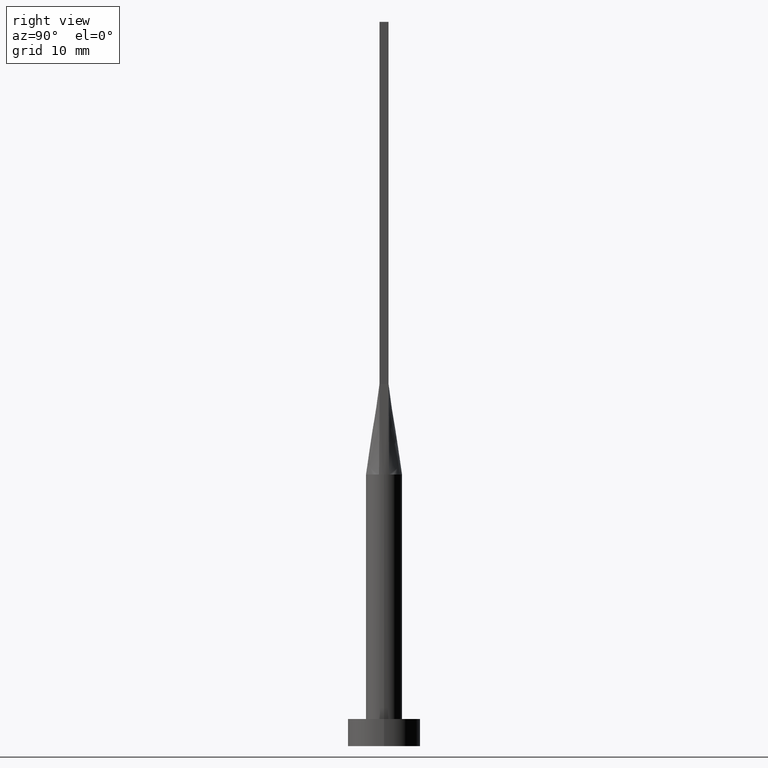
[diagram: clean part render]
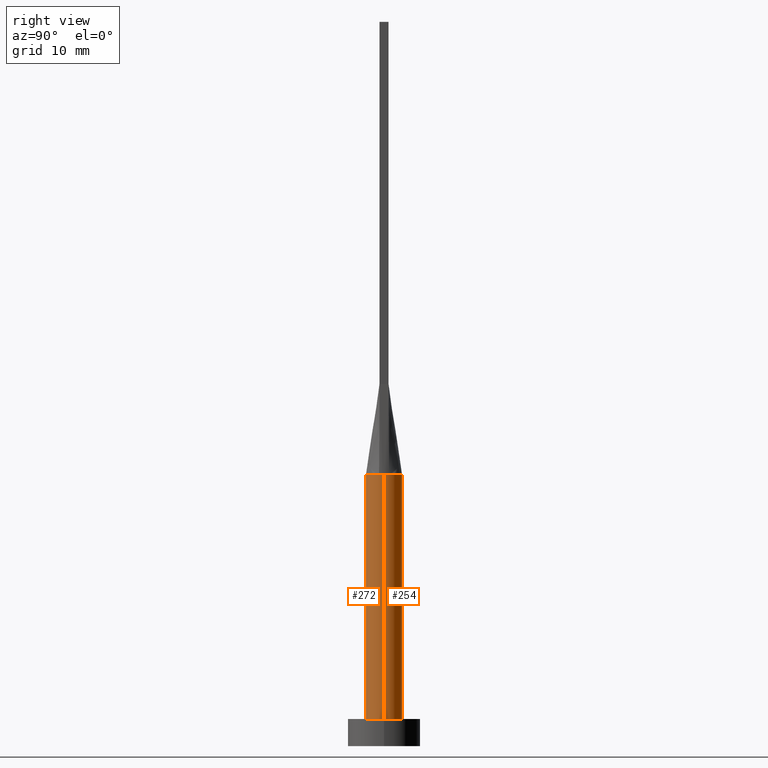
[diagram: same view with one multi-face feature highlighted, each face labeled with its STEP entity id]
A machine part, right view. The highlighted faces form ONE feature: a constant-radius fillet chain: 2 tangent blend faces with common blend radius 2 mm. The faces share edges in the B-rep.
Their STEP definitions:
[1] entity #254 (Cylinder):
#20 = AXIS2_PLACEMENT_3D ( 'NONE', #42, #34, #173 ) ;
#21 = ORIENTED_EDGE ( 'NONE', *, *, #78, .T. ) ;
#22 = EDGE_CURVE ( 'NONE', #23, #450, #408, .T. ) ;
#23 = VERTEX_POINT ( 'NONE', #439 ) ;
#29 = CARTESIAN_POINT ( 'NONE',  ( -1.155438169178558017, 1.647245198242353936, 30.00000000000000711 ) ) ;
#33 = CARTESIAN_POINT ( 'NONE',  ( -1.812374357931688884, 0.8669367617086288780, 30.00000000000001066 ) ) ;
#34 = DIRECTION ( 'NONE',  ( -0.000000000000000000, -0.000000000000000000, -1.000000000000000000 ) ) ;
#42 = CARTESIAN_POINT ( 'NONE',  ( 0.000000000000000000, 0.000000000000000000, 30.00000000000000000 ) ) ;
#70 = EDGE_CURVE ( 'NONE', #514, #23, #160, .T. ) ;
#72 = DIRECTION ( 'NONE',  ( 0.000000000000000000, 0.000000000000000000, 1.000000000000000000 ) ) ;
#76 = CARTESIAN_POINT ( 'NONE',  ( 0.000000000000000000, 0.000000000000000000, 30.00000000000000000 ) ) ;
#78 = EDGE_CURVE ( 'NONE', #396, #99, #136, .T. ) ;
#80 = DIRECTION ( 'NONE',  ( -0.000000000000000000, -0.000000000000000000, -1.000000000000000000 ) ) ;
#89 = ORIENTED_EDGE ( 'NONE', *, *, #70, .F. ) ;
#92 = EDGE_CURVE ( 'NONE', #450, #288, #237, .T. ) ;
#99 = VERTEX_POINT ( 'NONE', #404 ) ;
#106 = EDGE_LOOP ( 'NONE', ( #461, #21, #332, #406, #425, #89 ) ) ;
#116 = VECTOR ( 'NONE', #80, 1000.000000000000000 ) ;
#136 = LINE ( 'NONE', #325, #556 ) ;
#144 = AXIS2_PLACEMENT_3D ( 'NONE', #334, #247, #466 ) ;
#160 = B_SPLINE_CURVE_WITH_KNOTS ( 'NONE', 3,
 ( #387, #476, #176, #310, #383, #566, #162, #343, #259, #430, #481, #167, #29, #262, #434, #33, #504, #221 ),
 .UNSPECIFIED., .F., .F.,
 ( 4, 2, 2, 2, 2, 2, 2, 2, 4 ),
 ( 0.000000000000000000, 0.1249999999999999722, 0.2500000000000000000, 0.3750000000000000000, 0.5000000000000001110, 0.6250000000000001110, 0.7500000000000000000, 0.8750000000000000000, 1.000000000000000000 ),
 .UNSPECIFIED. ) ;
#162 = CARTESIAN_POINT ( 'NONE',  ( 0.9545234919502409987, 1.774214358793529955, 30.00000000000000355 ) ) ;
#167 = CARTESIAN_POINT ( 'NONE',  ( -0.9545234919502401105, 1.774214358793530177, 30.00000000000000355 ) ) ;
#171 = DIRECTION ( 'NONE',  ( 0.000000000000000000, 0.000000000000000000, 1.000000000000000000 ) ) ;
#173 = DIRECTION ( 'NONE',  ( -1.000000000000000000, 0.000000000000000000, 0.000000000000000000 ) ) ;
#176 = CARTESIAN_POINT ( 'NONE',  ( 1.812374357931689328, 0.8669367617086293221, 30.00000000000000355 ) ) ;
#212 = DIRECTION ( 'NONE',  ( 1.000000000000000000, 0.000000000000000000, 0.000000000000000000 ) ) ;
#219 = CARTESIAN_POINT ( 'NONE',  ( 0.000000000000000000, 0.000000000000000000, 3.000000000000000000 ) ) ;
#221 = CARTESIAN_POINT ( 'NONE',  ( -1.923179810488875541, 0.5494804890868837388, 30.00000000000000000 ) ) ;
#225 = CARTESIAN_POINT ( 'NONE',  ( -2.000000000000000000, 0.000000000000000000, 30.00000000000000000 ) ) ;
#237 = LINE ( 'NONE', #225, #116 ) ;
#247 = DIRECTION ( 'NONE',  ( 0.000000000000000000, 0.000000000000000000, 1.000000000000000000 ) ) ;
#254 = ADVANCED_FACE ( 'NONE', ( #483 ), #537, .T. ) ;
#259 = CARTESIAN_POINT ( 'NONE',  ( 0.2514338042514535632, 1.999999999999999556, 30.00000000000000355 ) ) ;
#261 = CARTESIAN_POINT ( 'NONE',  ( -2.000000000000000000, 8.710755549421510381E-17, 30.00000000000000000 ) ) ;
#262 = CARTESIAN_POINT ( 'NONE',  ( -1.486037034853319616, 1.356520562679218056, 30.00000000000000355 ) ) ;
#269 = CARTESIAN_POINT ( 'NONE',  ( 2.000000000000000000, 2.759698982225367658E-17, 30.00000000000000000 ) ) ;
#288 = VERTEX_POINT ( 'NONE', #377 ) ;
#310 = CARTESIAN_POINT ( 'NONE',  ( 1.616149014776643522, 1.193458220519943103, 30.00000000000000000 ) ) ;
#325 = CARTESIAN_POINT ( 'NONE',  ( 2.000000000000000000, 2.449293598294706414E-16, 30.00000000000000000 ) ) ;
#332 = ORIENTED_EDGE ( 'NONE', *, *, #384, .T. ) ;
#334 = CARTESIAN_POINT ( 'NONE',  ( 0.000000000000000000, 0.000000000000000000, 30.00000000000000000 ) ) ;
#343 = CARTESIAN_POINT ( 'NONE',  ( 0.5022746254375803909, 1.951069421695587947, 29.99999999999999645 ) ) ;
#351 = AXIS2_PLACEMENT_3D ( 'NONE', #219, #171, #397 ) ;
#362 = EDGE_CURVE ( 'NONE', #396, #514, #385, .T. ) ;
#377 = CARTESIAN_POINT ( 'NONE',  ( -2.000000000000000000, 0.000000000000000000, 3.000000000000000000 ) ) ;
#383 = CARTESIAN_POINT ( 'NONE',  ( 1.486037034853319616, 1.356520562679217834, 29.99999999999999289 ) ) ;
#384 = EDGE_CURVE ( 'NONE', #99, #288, #523, .T. ) ;
#385 = CIRCLE ( 'NONE', #144, 2.000000000000000000 ) ;
#387 = CARTESIAN_POINT ( 'NONE',  ( 1.923154993136894975, 0.5494733089275741778, 30.00000000000000000 ) ) ;
#396 = VERTEX_POINT ( 'NONE', #269 ) ;
#397 = DIRECTION ( 'NONE',  ( 1.000000000000000000, 0.000000000000000000, 0.000000000000000000 ) ) ;
#404 = CARTESIAN_POINT ( 'NONE',  ( 2.000000000000000000, 2.449293598294706414E-16, 3.000000000000000000 ) ) ;
#406 = ORIENTED_EDGE ( 'NONE', *, *, #92, .F. ) ;
#408 = CIRCLE ( 'NONE', #435, 2.000000000000000000 ) ;
#425 = ORIENTED_EDGE ( 'NONE', *, *, #22, .F. ) ;
#430 = CARTESIAN_POINT ( 'NONE',  ( -0.2514338042514528415, 1.999999999999999556, 30.00000000000001066 ) ) ;
#434 = CARTESIAN_POINT ( 'NONE',  ( -1.616149014776643966, 1.193458220519943103, 30.00000000000000711 ) ) ;
#435 = AXIS2_PLACEMENT_3D ( 'NONE', #76, #72, #212 ) ;
#439 = CARTESIAN_POINT ( 'NONE',  ( -1.923179810488875541, 0.5494804890868837388, 30.00000000000000000 ) ) ;
#450 = VERTEX_POINT ( 'NONE', #261 ) ;
#461 = ORIENTED_EDGE ( 'NONE', *, *, #362, .F. ) ;
#466 = DIRECTION ( 'NONE',  ( 1.000000000000000000, 0.000000000000000000, 0.000000000000000000 ) ) ;
#476 = CARTESIAN_POINT ( 'NONE',  ( 1.879022738048942154, 0.7035303061092218480, 30.00000000000000355 ) ) ;
#481 = CARTESIAN_POINT ( 'NONE',  ( -0.5022746254375797248, 1.951069421695588169, 29.99999999999999645 ) ) ;
#483 = FACE_OUTER_BOUND ( 'NONE', #106, .T. ) ;
#490 = CARTESIAN_POINT ( 'NONE',  ( 1.923154993136894975, 0.5494733089275741778, 30.00000000000000000 ) ) ;
#498 = DIRECTION ( 'NONE',  ( -0.000000000000000000, -0.000000000000000000, -1.000000000000000000 ) ) ;
#504 = CARTESIAN_POINT ( 'NONE',  ( -1.879022738048941710, 0.7035303061092221810, 30.00000000000000000 ) ) ;
#514 = VERTEX_POINT ( 'NONE', #490 ) ;
#523 = CIRCLE ( 'NONE', #351, 2.000000000000000000 ) ;
#537 = CYLINDRICAL_SURFACE ( 'NONE', #20, 2.000000000000000000 ) ;
#556 = VECTOR ( 'NONE', #498, 1000.000000000000000 ) ;
#566 = CARTESIAN_POINT ( 'NONE',  ( 1.155438169178558461, 1.647245198242353714, 29.99999999999999645 ) ) ;
[2] entity #272 (Cylinder):
#53 = AXIS2_PLACEMENT_3D ( 'NONE', #348, #131, #394 ) ;
#78 = EDGE_CURVE ( 'NONE', #396, #99, #136, .T. ) ;
#80 = DIRECTION ( 'NONE',  ( -0.000000000000000000, -0.000000000000000000, -1.000000000000000000 ) ) ;
#87 = CIRCLE ( 'NONE', #189, 2.000000000000000000 ) ;
#91 = CARTESIAN_POINT ( 'NONE',  ( 0.000000000000000000, 0.000000000000000000, 3.000000000000000000 ) ) ;
#92 = EDGE_CURVE ( 'NONE', #450, #288, #237, .T. ) ;
#93 = ORIENTED_EDGE ( 'NONE', *, *, #459, .F. ) ;
#99 = VERTEX_POINT ( 'NONE', #404 ) ;
#110 = VERTEX_POINT ( 'NONE', #544 ) ;
#114 = AXIS2_PLACEMENT_3D ( 'NONE', #258, #321, #311 ) ;
#116 = VECTOR ( 'NONE', #80, 1000.000000000000000 ) ;
#117 = EDGE_CURVE ( 'NONE', #288, #99, #545, .T. ) ;
#131 = DIRECTION ( 'NONE',  ( 0.000000000000000000, 0.000000000000000000, 1.000000000000000000 ) ) ;
#136 = LINE ( 'NONE', #325, #556 ) ;
#156 = AXIS2_PLACEMENT_3D ( 'NONE', #91, #540, #495 ) ;
#157 = CYLINDRICAL_SURFACE ( 'NONE', #578, 2.000000000000000000 ) ;
#175 = DIRECTION ( 'NONE',  ( 0.000000000000000000, 0.000000000000000000, 1.000000000000000000 ) ) ;
#189 = AXIS2_PLACEMENT_3D ( 'NONE', #317, #175, #224 ) ;
#194 = ORIENTED_EDGE ( 'NONE', *, *, #92, .T. ) ;
#203 = FACE_OUTER_BOUND ( 'NONE', #426, .T. ) ;
#205 = ORIENTED_EDGE ( 'NONE', *, *, #507, .F. ) ;
#215 = DIRECTION ( 'NONE',  ( -1.000000000000000000, 0.000000000000000000, 0.000000000000000000 ) ) ;
#224 = DIRECTION ( 'NONE',  ( 1.000000000000000000, 0.000000000000000000, 0.000000000000000000 ) ) ;
#225 = CARTESIAN_POINT ( 'NONE',  ( -2.000000000000000000, 0.000000000000000000, 30.00000000000000000 ) ) ;
#237 = LINE ( 'NONE', #225, #116 ) ;
#251 = ORIENTED_EDGE ( 'NONE', *, *, #572, .F. ) ;
#258 = CARTESIAN_POINT ( 'NONE',  ( 0.000000000000000000, 0.000000000000000000, 30.00000000000000000 ) ) ;
#261 = CARTESIAN_POINT ( 'NONE',  ( -2.000000000000000000, 8.710755549421510381E-17, 30.00000000000000000 ) ) ;
#269 = CARTESIAN_POINT ( 'NONE',  ( 2.000000000000000000, 2.759698982225367658E-17, 30.00000000000000000 ) ) ;
#272 = ADVANCED_FACE ( 'NONE', ( #203 ), #157, .T. ) ;
#288 = VERTEX_POINT ( 'NONE', #377 ) ;
#298 = CIRCLE ( 'NONE', #53, 2.000000000000000000 ) ;
#311 = DIRECTION ( 'NONE',  ( 1.000000000000000000, 3.552713678800500929E-15, 0.000000000000000000 ) ) ;
#312 = ORIENTED_EDGE ( 'NONE', *, *, #78, .F. ) ;
#317 = CARTESIAN_POINT ( 'NONE',  ( 0.000000000000000000, 0.000000000000000000, 30.00000000000000000 ) ) ;
#321 = DIRECTION ( 'NONE',  ( 0.000000000000000000, 0.000000000000000000, 1.000000000000000000 ) ) ;
#325 = CARTESIAN_POINT ( 'NONE',  ( 2.000000000000000000, 2.449293598294706414E-16, 30.00000000000000000 ) ) ;
#327 = VERTEX_POINT ( 'NONE', #536 ) ;
#341 = CIRCLE ( 'NONE', #114, 2.000000000000000000 ) ;
#348 = CARTESIAN_POINT ( 'NONE',  ( 0.000000000000000000, 0.000000000000000000, 30.00000000000000000 ) ) ;
#377 = CARTESIAN_POINT ( 'NONE',  ( -2.000000000000000000, 0.000000000000000000, 3.000000000000000000 ) ) ;
#394 = DIRECTION ( 'NONE',  ( 1.000000000000000000, 0.000000000000000000, 0.000000000000000000 ) ) ;
#396 = VERTEX_POINT ( 'NONE', #269 ) ;
#404 = CARTESIAN_POINT ( 'NONE',  ( 2.000000000000000000, 2.449293598294706414E-16, 3.000000000000000000 ) ) ;
#426 = EDGE_LOOP ( 'NONE', ( #312, #93, #251, #205, #194, #471 ) ) ;
#431 = DIRECTION ( 'NONE',  ( -0.000000000000000000, -0.000000000000000000, -1.000000000000000000 ) ) ;
#450 = VERTEX_POINT ( 'NONE', #261 ) ;
#459 = EDGE_CURVE ( 'NONE', #327, #396, #341, .T. ) ;
#471 = ORIENTED_EDGE ( 'NONE', *, *, #117, .T. ) ;
#495 = DIRECTION ( 'NONE',  ( 1.000000000000000000, 0.000000000000000000, 0.000000000000000000 ) ) ;
#498 = DIRECTION ( 'NONE',  ( -0.000000000000000000, -0.000000000000000000, -1.000000000000000000 ) ) ;
#507 = EDGE_CURVE ( 'NONE', #450, #110, #298, .T. ) ;
#536 = CARTESIAN_POINT ( 'NONE',  ( 1.923186205402444449, -0.5494823831763672173, 30.00000000000000000 ) ) ;
#540 = DIRECTION ( 'NONE',  ( 0.000000000000000000, 0.000000000000000000, 1.000000000000000000 ) ) ;
#544 = CARTESIAN_POINT ( 'NONE',  ( -1.923161340940673369, -0.5494751859438878894, 30.00000000000000000 ) ) ;
#545 = CIRCLE ( 'NONE', #156, 2.000000000000000000 ) ;
#556 = VECTOR ( 'NONE', #498, 1000.000000000000000 ) ;
#571 = CARTESIAN_POINT ( 'NONE',  ( 0.000000000000000000, 0.000000000000000000, 30.00000000000000000 ) ) ;
#572 = EDGE_CURVE ( 'NONE', #110, #327, #87, .T. ) ;
#578 = AXIS2_PLACEMENT_3D ( 'NONE', #571, #431, #215 ) ;